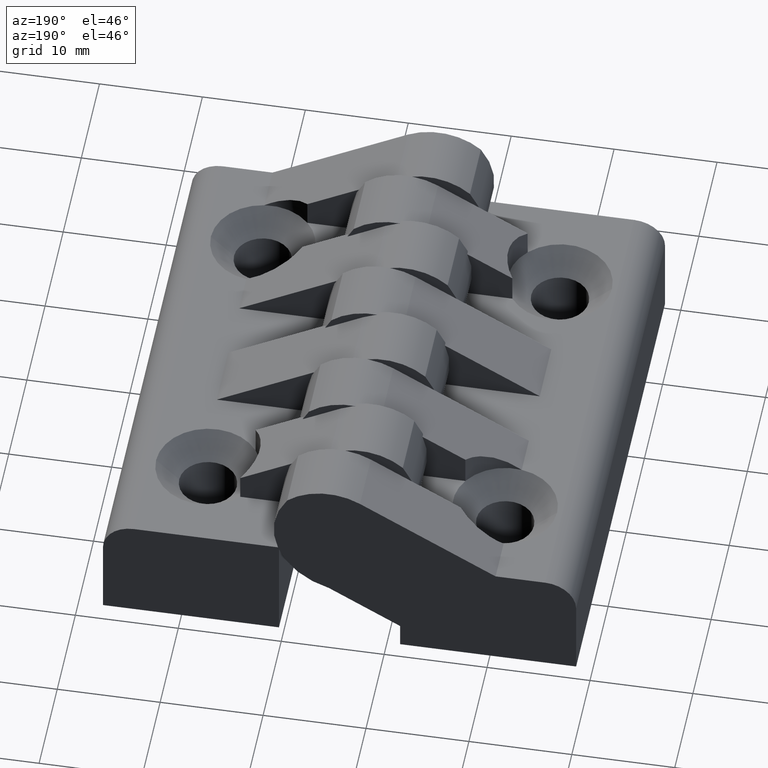
[diagram: clean part render]
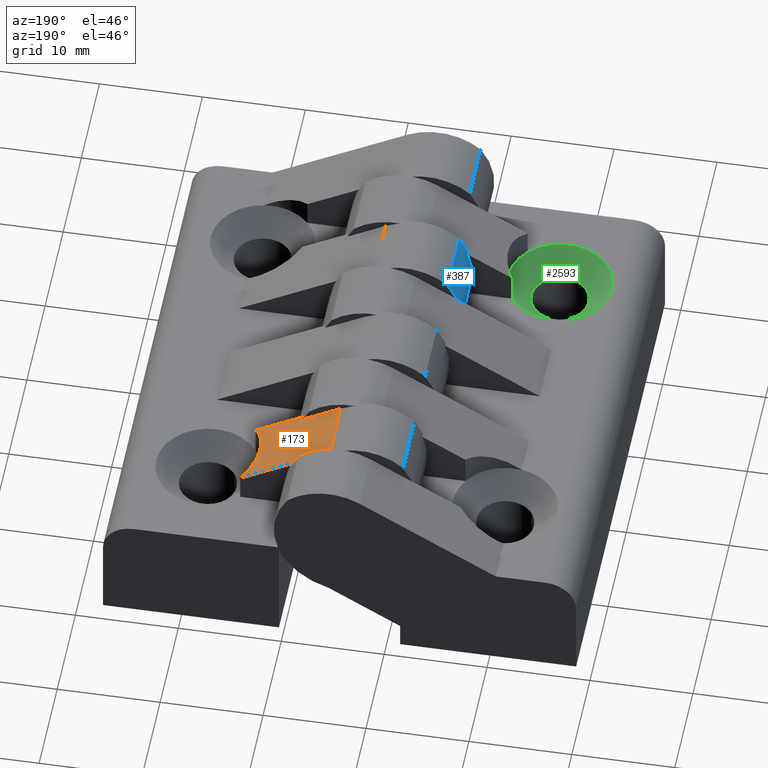
[diagram: same view with three faces highlighted in distinct colors, each labeled with its STEP entity id]
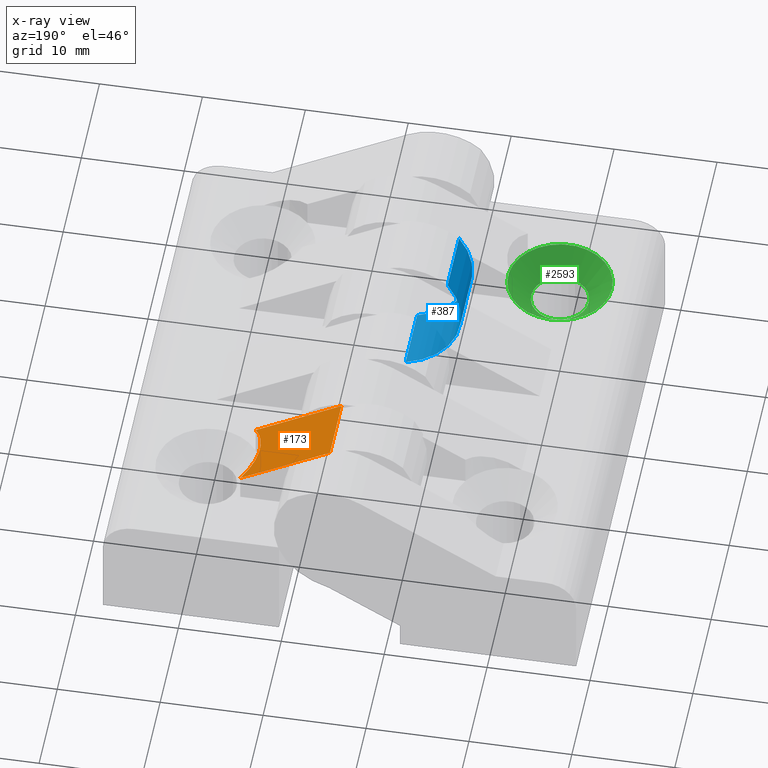
[diagram: x-ray of the same camera — body ghosted, the three highlighted faces saturated]
A machine part, auxiliary view with three faces highlighted in distinct colors.
The next image is the same camera in x-ray (body ghosted, the three faces saturated) — at least one of them is partly hidden behind the body in this view.
Their STEP definitions:

[orange] entity #173 — the highlighted planar face has unit normal (0.5, 0, 0.866).
#133=CARTESIAN_POINT('',(29.601184118076901,9.399999999766344,11.200123499865413));
#134=DIRECTION('',(0.499999999999971,5.302876E-017,0.866025403784455));
#135=DIRECTION('',(-0.866025403784455,3.061617E-017,0.499999999999971));
#136=AXIS2_PLACEMENT_3D('',#133,#134,#135);
#137=PLANE('',#136);
#138=CARTESIAN_POINT('',(16.423615982463986,3.399999999962341,18.808196010225572));
#139=VERTEX_POINT('',#138);
#140=CARTESIAN_POINT('',(16.423615982463986,-2.933333333370991,18.808196010225572));
#141=VERTEX_POINT('',#140);
#142=CARTESIAN_POINT('',(16.423615982463986,3.399999999962342,18.808196010225572));
#143=DIRECTION('',(0.0,-1.0,0.0));
#144=VECTOR('',#143,6.333333333333332);
#145=LINE('',#142,#144);
#146=EDGE_CURVE('',#139,#141,#145,.T.);
#147=ORIENTED_EDGE('',*,*,#146,.T.);
#148=CARTESIAN_POINT('',(24.762891526034622,-2.933333333370993,13.993513030298971));
#149=VERTEX_POINT('',#148);
#150=CARTESIAN_POINT('',(24.762891526034615,-2.933333333370991,13.993513030298981));
#151=DIRECTION('',(-0.866025403784456,4.611822E-017,0.499999999999971));
#152=VECTOR('',#151,9.629365959853743);
#153=LINE('',#150,#152);
#154=EDGE_CURVE('',#149,#141,#153,.T.);
#155=ORIENTED_EDGE('',*,*,#154,.F.);
#156=CARTESIAN_POINT('',(25.139650262336403,3.399999999962341,13.775991272475608));
#157=VERTEX_POINT('',#156);
#158=CARTESIAN_POINT('',(28.873615982414321,-1.960025E-010,11.620185158843954));
#159=DIRECTION('',(0.499999999999971,5.302876E-017,0.866025403784455));
#160=DIRECTION('',(-0.866025403784455,3.061617E-017,0.499999999999971));
#161=AXIS2_PLACEMENT_3D('',#158,#159,#160);
#162=ELLIPSE('',#161,5.831237718791524,5.049999999979576);
#163=EDGE_CURVE('',#157,#149,#162,.T.);
#164=ORIENTED_EDGE('',*,*,#163,.F.);
#165=CARTESIAN_POINT('',(25.139650262336403,3.399999999962341,13.775991272475617));
#166=DIRECTION('',(-0.866025403784455,4.412472E-017,0.499999999999971));
#167=VECTOR('',#166,10.064409475500497);
#168=LINE('',#165,#167);
#169=EDGE_CURVE('',#157,#139,#168,.T.);
#170=ORIENTED_EDGE('',*,*,#169,.T.);
#171=EDGE_LOOP('',(#147,#155,#164,#170));
#172=FACE_OUTER_BOUND('',#171,.T.);
#173=ADVANCED_FACE('',(#172),#137,.T.);

[blue] entity #387 — the highlighted cylindrical surface (partial cylindrical patch) has radius 7.4108 mm, axis along (0, -1, 0).
#228=CARTESIAN_POINT('',(9.343956253720819,-27.600000000037660,18.011631806598757));
#229=VERTEX_POINT('',#228);
#238=CARTESIAN_POINT('',(9.343956253720819,-21.266666666704328,18.011631806598757));
#239=VERTEX_POINT('',#238);
#247=CARTESIAN_POINT('',(9.343956253720819,-21.266666666704324,18.011631806598761));
#248=DIRECTION('',(0.0,-1.0,0.0));
#249=VECTOR('',#248,6.333333333333336);
#250=LINE('',#247,#249);
#251=EDGE_CURVE('',#239,#229,#250,.T.);
#355=CARTESIAN_POINT('',(15.449999999938200,9.399999999766344,13.812167087449268));
#356=DIRECTION('',(0.0,-1.0,6.123234E-017));
#357=DIRECTION('',(-0.823943661413975,3.469864E-017,0.566671724030530));
#358=AXIS2_PLACEMENT_3D('',#355,#356,#357);
#359=CYLINDRICAL_SURFACE('',#358,7.410753953418086);
#360=CARTESIAN_POINT('',(13.423615982476122,-27.600000000037660,6.683840357291901));
#361=VERTEX_POINT('',#360);
#362=CARTESIAN_POINT('',(15.449999999938203,-27.600000000037674,13.812167087449275));
#363=DIRECTION('',(0.0,1.000000000000000,-6.123234E-017));
#364=DIRECTION('',(-0.823943661413975,3.469864E-017,0.566671724030530));
#365=AXIS2_PLACEMENT_3D('',#362,#363,#364);
#366=CIRCLE('',#365,7.410753953418086);
#367=EDGE_CURVE('',#361,#229,#366,.T.);
#368=ORIENTED_EDGE('',*,*,#367,.T.);
#369=ORIENTED_EDGE('',*,*,#251,.F.);
#370=CARTESIAN_POINT('',(13.423615982476122,-21.266666666704328,6.683840357291900));
#371=VERTEX_POINT('',#370);
#372=CARTESIAN_POINT('',(15.449999999938202,-21.266666666704332,13.812167087449275));
#373=DIRECTION('',(0.0,1.000000000000000,-6.123234E-017));
#374=DIRECTION('',(-0.823943661413975,3.469864E-017,0.566671724030530));
#375=AXIS2_PLACEMENT_3D('',#372,#373,#374);
#376=CIRCLE('',#375,7.410753953418086);
#377=EDGE_CURVE('',#371,#239,#376,.T.);
#378=ORIENTED_EDGE('',*,*,#377,.F.);
#379=CARTESIAN_POINT('',(13.423615982476122,-21.266666666704328,6.683840357291900));
#380=DIRECTION('',(0.0,-1.0,0.0));
#381=VECTOR('',#380,6.333333333333332);
#382=LINE('',#379,#381);
#383=EDGE_CURVE('',#371,#361,#382,.T.);
#384=ORIENTED_EDGE('',*,*,#383,.T.);
#385=EDGE_LOOP('',(#368,#369,#378,#384));
#386=FACE_OUTER_BOUND('',#385,.T.);
#387=ADVANCED_FACE('',(#386),#359,.T.);

[green] entity #2593 — the highlighted face is a freeform B-spline surface patch.
#2229=CARTESIAN_POINT('',(4.110724456379700,-27.266666666704324,10.999999999956289));
#2230=VERTEX_POINT('',#2229);
#2255=CARTESIAN_POINT('',(3.733965720077919,-33.600000000037660,10.999999999956289));
#2256=VERTEX_POINT('',#2255);
#2295=CARTESIAN_POINT('',(-5.049999999979576,-30.199999999879317,10.999999999955948));
#2296=VERTEX_POINT('',#2295);
#2297=CARTESIAN_POINT('',(0.0,-30.199999999879317,10.999999999955948));
#2298=DIRECTION('',(0.0,6.123234E-017,1.0));
#2299=DIRECTION('',(-1.0,1.224647E-016,-7.498799E-033));
#2300=AXIS2_PLACEMENT_3D('',#2297,#2298,#2299);
#2301=CIRCLE('',#2300,5.049999999979576);
#2302=EDGE_CURVE('',#2296,#2256,#2301,.T.);
#2304=CARTESIAN_POINT('',(0.0,-30.199999999879317,10.999999999955948));
#2305=DIRECTION('',(0.0,6.123234E-017,1.0));
#2306=DIRECTION('',(-1.0,1.224647E-016,-7.498799E-033));
#2307=AXIS2_PLACEMENT_3D('',#2304,#2305,#2306);
#2308=CIRCLE('',#2307,5.049999999979576);
#2309=EDGE_CURVE('',#2230,#2296,#2308,.T.);
#2517=CARTESIAN_POINT('',(-2.799999999988586,-30.199999999879317,8.749999999964929));
#2518=VERTEX_POINT('',#2517);
#2528=CARTESIAN_POINT('',(2.799999999988586,-30.199999999879317,8.749999999964929));
#2529=VERTEX_POINT('',#2528);
#2530=CARTESIAN_POINT('',(0.0,-30.199999999879317,8.749999999964929));
#2531=DIRECTION('',(0.0,6.123234E-017,1.0));
#2532=DIRECTION('',(-1.0,1.224647E-016,-7.498799E-033));
#2533=AXIS2_PLACEMENT_3D('',#2530,#2531,#2532);
#2534=CIRCLE('',#2533,2.799999999988586);
#2535=EDGE_CURVE('',#2518,#2529,#2534,.T.);
#2537=CARTESIAN_POINT('',(0.0,-30.199999999879317,8.749999999964929));
#2538=DIRECTION('',(0.0,6.123234E-017,1.0));
#2539=DIRECTION('',(-1.0,1.224647E-016,-7.498799E-033));
#2540=AXIS2_PLACEMENT_3D('',#2537,#2538,#2539);
#2541=CIRCLE('',#2540,2.799999999988586);
#2542=EDGE_CURVE('',#2529,#2518,#2541,.T.);
#2547=CARTESIAN_POINT('',(-2.799999999988586,-30.199999999879317,8.749999999964929));
#2548=CARTESIAN_POINT('',(-2.799999999988585,-32.999999999867903,8.749999999964929));
#2549=CARTESIAN_POINT('',(5.357830E-016,-32.999999999867903,8.749999999964929));
#2550=CARTESIAN_POINT('',(2.799999999988586,-32.999999999867903,8.749999999964929));
#2551=CARTESIAN_POINT('',(2.799999999988586,-30.199999999879317,8.749999999964929));
#2552=CARTESIAN_POINT('',(2.799999999988585,-27.399999999890731,8.749999999964929));
#2553=CARTESIAN_POINT('',(-5.357830E-016,-27.399999999890731,8.749999999964929));
#2554=CARTESIAN_POINT('',(-2.799999999988586,-27.399999999890731,8.749999999964929));
#2555=CARTESIAN_POINT('',(-2.799999999988586,-30.199999999879317,8.749999999964929));
#2556=CARTESIAN_POINT('',(-5.049999999979576,-30.199999999879317,10.999999999955948));
#2557=CARTESIAN_POINT('',(-5.049999999979575,-35.249999999858893,10.999999999955948));
#2558=CARTESIAN_POINT('',(6.735557E-016,-35.249999999858893,10.999999999955948));
#2559=CARTESIAN_POINT('',(5.049999999979577,-35.249999999858893,10.999999999955948));
#2560=CARTESIAN_POINT('',(5.049999999979576,-30.199999999879317,10.999999999955948));
#2561=CARTESIAN_POINT('',(5.049999999979575,-25.149999999899741,10.999999999955948));
#2562=CARTESIAN_POINT('',(-6.735557E-016,-25.149999999899741,10.999999999955948));
#2563=CARTESIAN_POINT('',(-5.049999999979577,-25.149999999899741,10.999999999955948));
#2564=CARTESIAN_POINT('',(-5.049999999979576,-30.199999999879317,10.999999999955948));
#2572=(BOUNDED_SURFACE()B_SPLINE_SURFACE(2,1,((#2547,#2556),(#2548,#2557),(#2549,#2558),(#2550,#2559),(#2551,#2560),(#2552,#2561),(#2553,#2562),(#2554,#2563),(#2555,#2564)),.UNSPECIFIED.,.T.,.F.,.U.)B_SPLINE_SURFACE_WITH_KNOTS((3,2,2,2,3),(2,2),(0.0,0.250000000000000,0.500000000000000,0.750000000000000,1.0),(0.0,3.181980515326742),.UNSPECIFIED.)GEOMETRIC_REPRESENTATION_ITEM()RATIONAL_B_SPLINE_SURFACE(((1.0,1.0),(0.707106781186548,0.707106781186548),(1.0,1.0),(0.707106781186548,0.707106781186548),(1.0,1.0),(0.707106781186548,0.707106781186548),(1.0,1.0),(0.707106781186548,0.707106781186548),(1.0,1.0)))REPRESENTATION_ITEM('')SURFACE());
#2573=CARTESIAN_POINT('',(-2.799999999988586,-30.199999999879317,8.749999999964929));
#2574=DIRECTION('',(-0.707106781186543,0.0,0.707106781186552));
#2575=VECTOR('',#2574,3.181980515326742);
#2576=LINE('',#2573,#2575);
#2577=EDGE_CURVE('',#2518,#2296,#2576,.T.);
#2578=ORIENTED_EDGE('',*,*,#2577,.T.);
#2579=ORIENTED_EDGE('',*,*,#2302,.T.);
#2580=CARTESIAN_POINT('',(0.0,-30.199999999879317,10.999999999955948));
#2581=DIRECTION('',(0.0,6.123234E-017,1.0));
#2582=DIRECTION('',(-1.0,1.224647E-016,-7.498799E-033));
#2583=AXIS2_PLACEMENT_3D('',#2580,#2581,#2582);
#2584=CIRCLE('',#2583,5.049999999979576);
#2585=EDGE_CURVE('',#2256,#2230,#2584,.T.);
#2586=ORIENTED_EDGE('',*,*,#2585,.T.);
#2587=ORIENTED_EDGE('',*,*,#2309,.T.);
#2588=ORIENTED_EDGE('',*,*,#2577,.F.);
#2589=ORIENTED_EDGE('',*,*,#2542,.F.);
#2590=ORIENTED_EDGE('',*,*,#2535,.F.);
#2591=EDGE_LOOP('',(#2578,#2579,#2586,#2587,#2588,#2589,#2590));
#2592=FACE_OUTER_BOUND('',#2591,.T.);
#2593=ADVANCED_FACE('',(#2592),#2572,.F.);